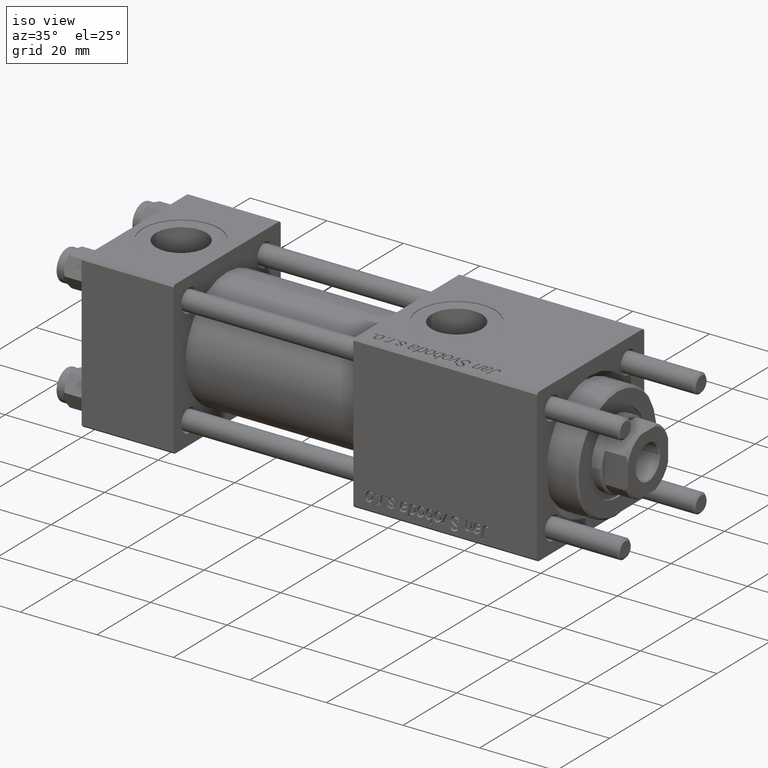
[diagram: clean part render]
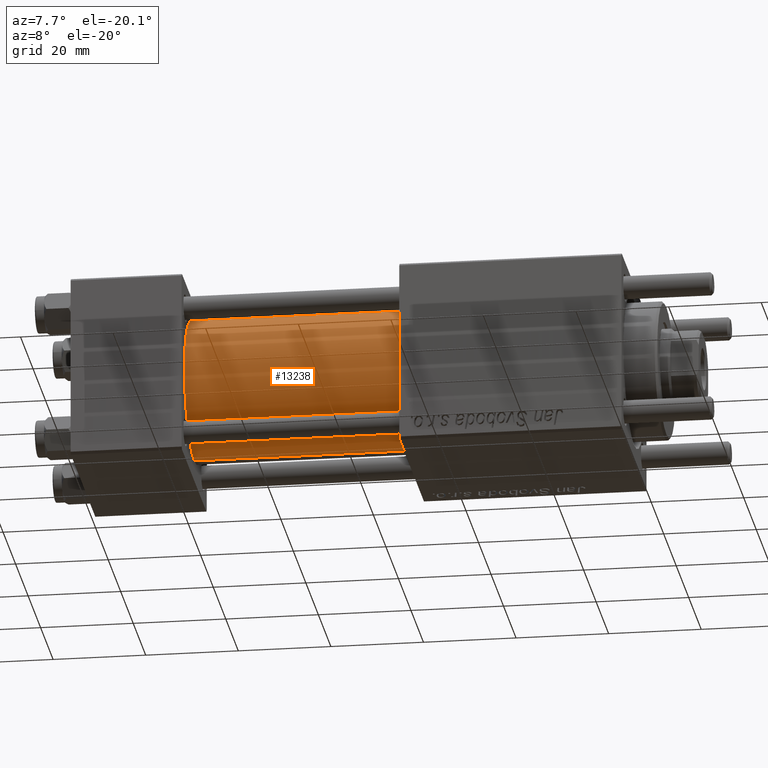
[diagram: tour spotlight — one face highlighted and labeled with its STEP entity id]
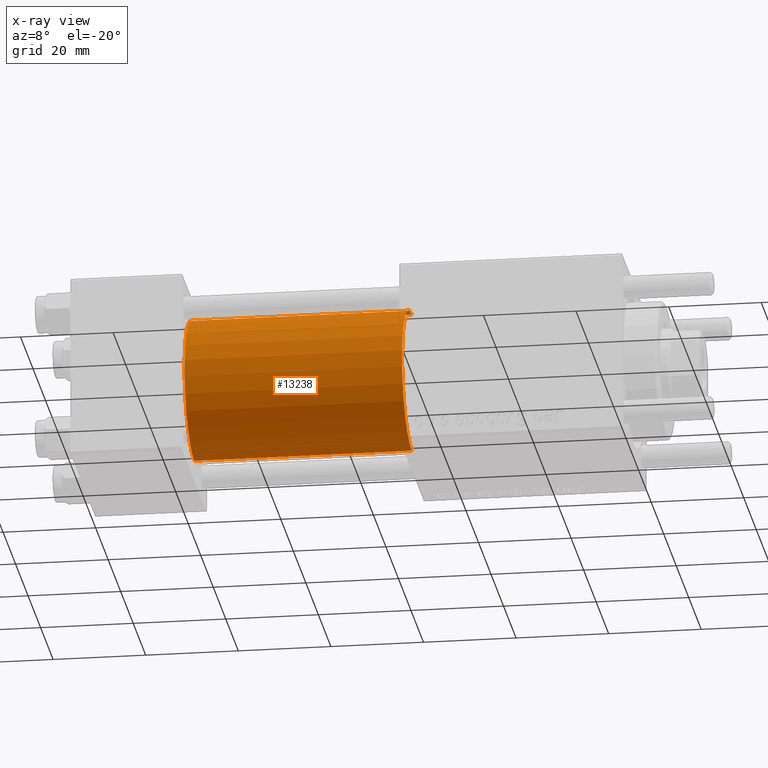
[diagram: x-ray of the same camera — body ghosted, this tour face saturated]
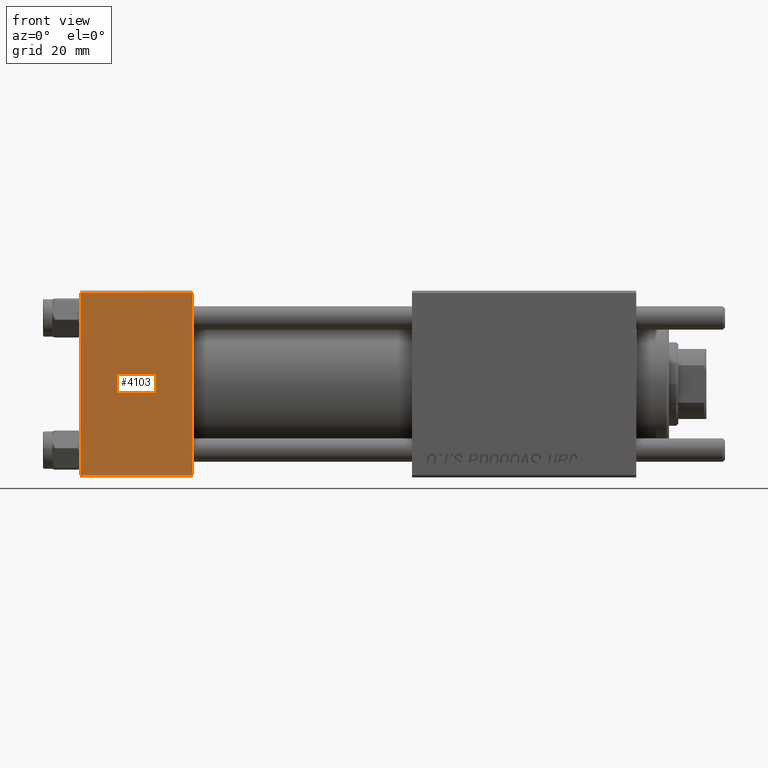
[diagram: tour spotlight — one face highlighted and labeled with its STEP entity id]
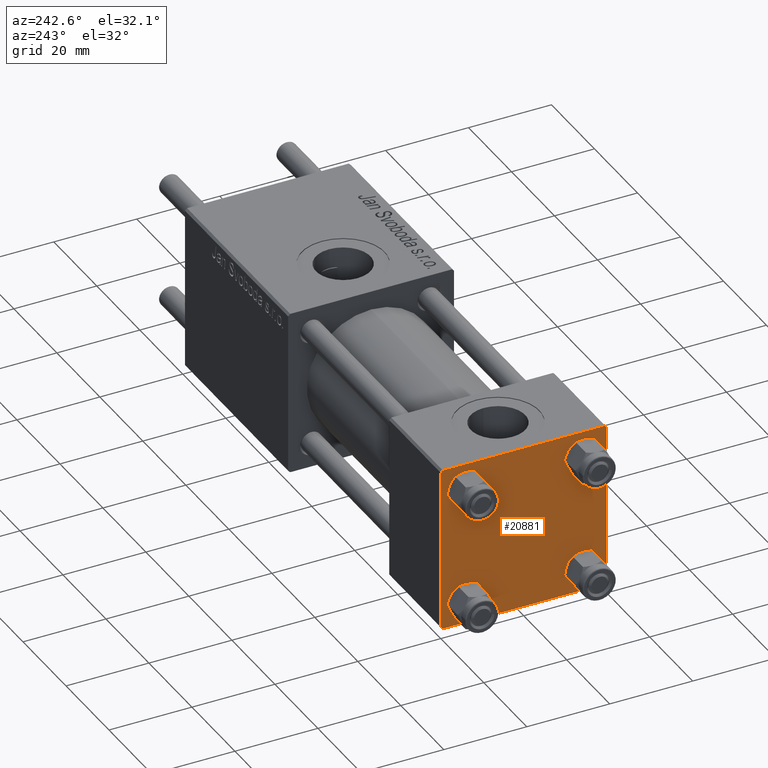
[diagram: tour spotlight — one face highlighted and labeled with its STEP entity id]
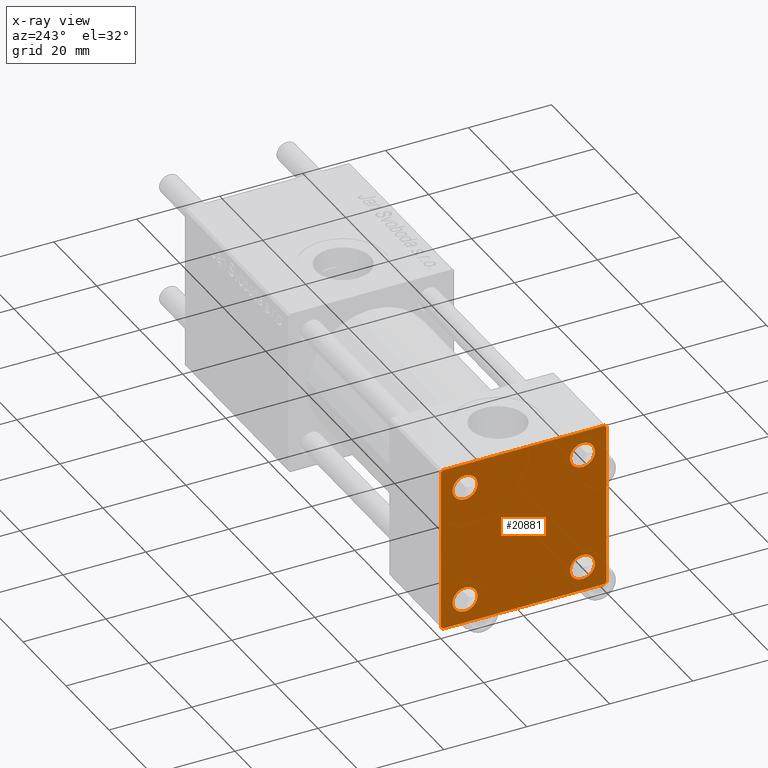
[diagram: x-ray of the same camera — body ghosted, this tour face saturated]
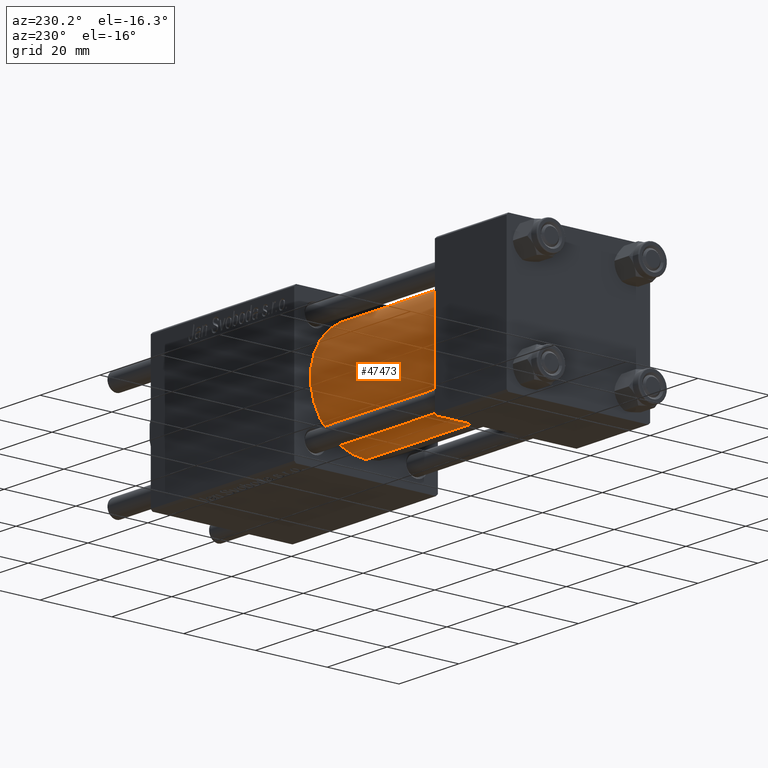
[diagram: tour spotlight — one face highlighted and labeled with its STEP entity id]
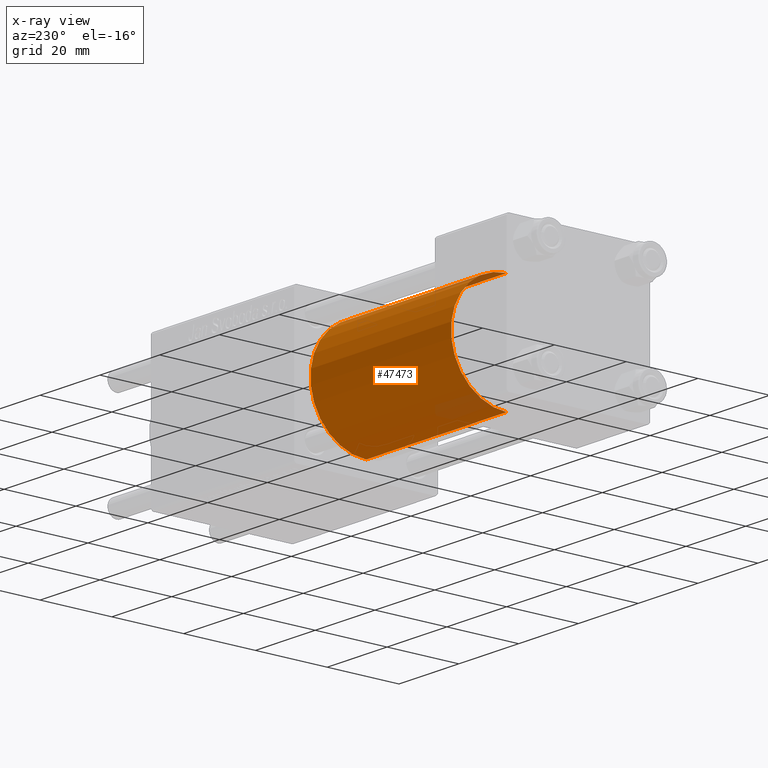
[diagram: x-ray of the same camera — body ghosted, this tour face saturated]
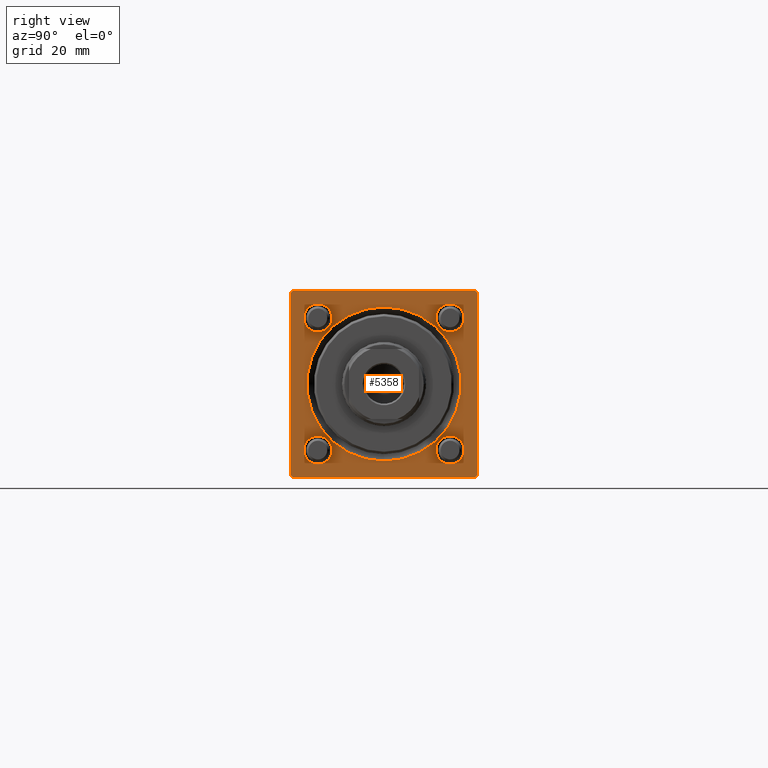
[diagram: tour spotlight — one face highlighted and labeled with its STEP entity id]
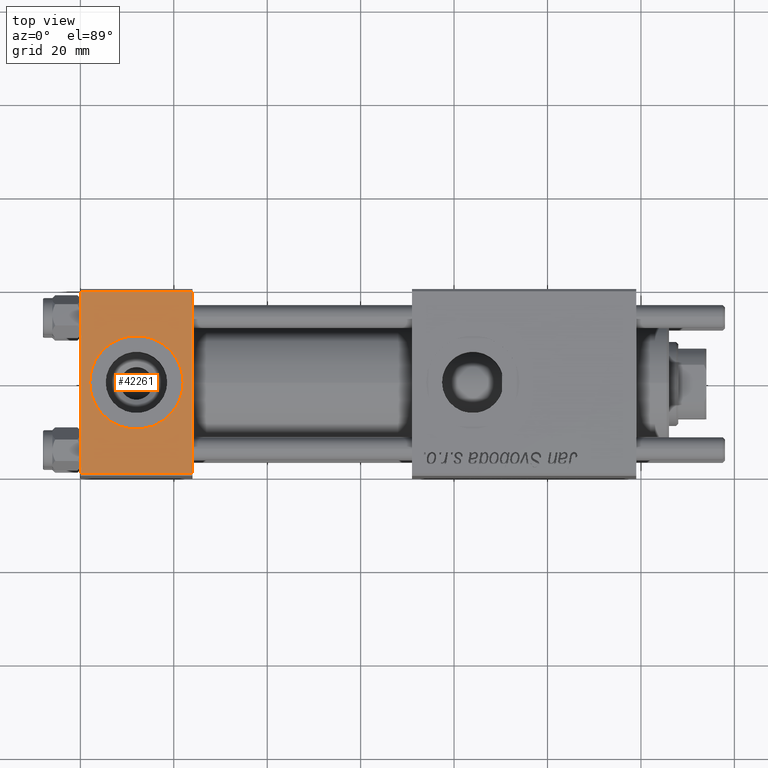
[diagram: tour spotlight — one face highlighted and labeled with its STEP entity id]
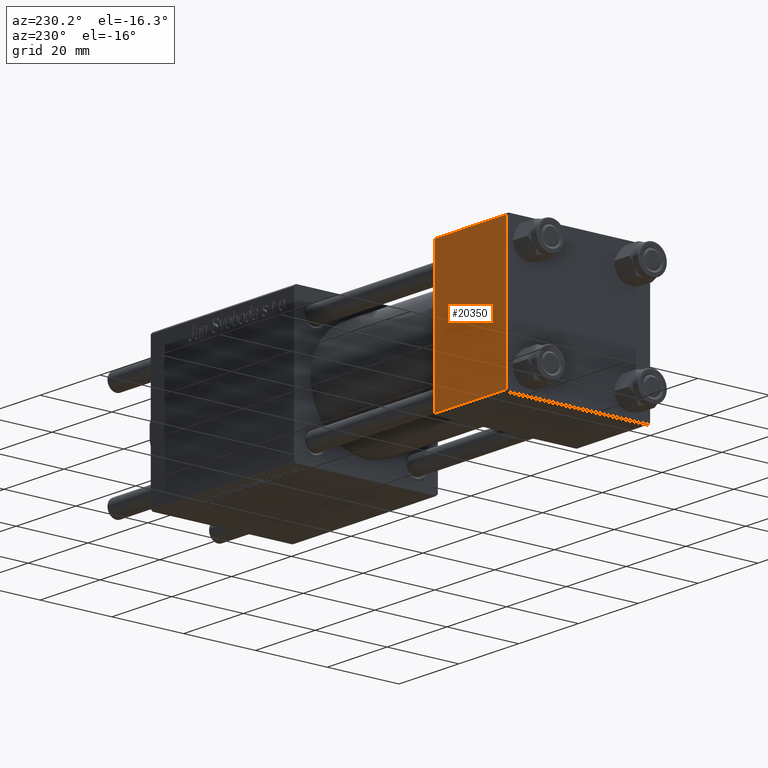
[diagram: tour spotlight — one face highlighted and labeled with its STEP entity id]
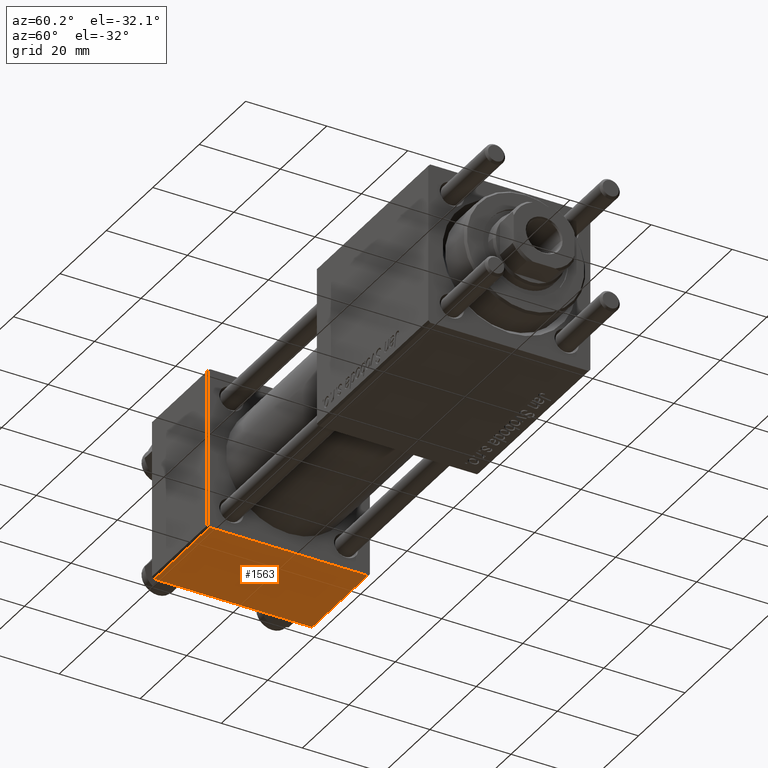
[diagram: tour spotlight — one face highlighted and labeled with its STEP entity id]
A machine part: a face-by-face anatomy tour. The part has 1152 B-rep faces; the first image is the clean iso view, then the 8 largest visible faces are spotlighted one at a time (largest first), each with its STEP entity span.

Face 1 — auxiliary view, entity #13238. An x-ray twin of the same camera follows (body ghosted, this face saturated) — the face is partly hidden behind the body. In plain terms, the highlighted cylindrical surface (partial cylindrical patch) has radius 15.5 mm, axis along (-1, -0, -0).
Definition (entity closure, byte-faithful):
#1494 = CARTESIAN_POINT ( 'NONE',  ( 24.00000000000000000, -2.602085213965210642E-15, 15.50000000000000000 ) ) ;
#1534 = VERTEX_POINT ( 'NONE', #2154 ) ;
#2118 = CARTESIAN_POINT ( 'NONE',  ( 71.00000000000001421, -7.038826752868131828E-16, -15.50000000000000000 ) ) ;
#2154 = CARTESIAN_POINT ( 'NONE',  ( 24.00000000000000000, -7.038826752868131828E-16, -15.50000000000000000 ) ) ;
#2237 = CIRCLE ( 'NONE', #30647, 15.50000000000000000 ) ;
#2763 = DIRECTION ( 'NONE',  ( 0.000000000000000000, 0.000000000000000000, -1.000000000000000000 ) ) ;
#4997 = VECTOR ( 'NONE', #11582, 1000.000000000000000 ) ;
#6837 = ORIENTED_EDGE ( 'NONE', *, *, #55506, .T. ) ;
#7010 = LINE ( 'NONE', #24492, #4997 ) ;
#7319 = VERTEX_POINT ( 'NONE', #1494 ) ;
#7344 = CARTESIAN_POINT ( 'NONE',  ( 71.00000000000001421, -2.602085213965210642E-15, 0.000000000000000000 ) ) ;
#8304 = ORIENTED_EDGE ( 'NONE', *, *, #25336, .F. ) ;
#11582 = DIRECTION ( 'NONE',  ( -1.000000000000000000, -0.000000000000000000, -0.000000000000000000 ) ) ;
#11857 = EDGE_CURVE ( 'NONE', #42491, #7319, #7010, .T. ) ;
#11965 = ORIENTED_EDGE ( 'NONE', *, *, #14362, .F. ) ;
#13238 = ADVANCED_FACE ( 'NONE', ( #14322 ), #22649, .T. ) ;
#14322 = FACE_OUTER_BOUND ( 'NONE', #53793, .T. ) ;
#14362 = EDGE_CURVE ( 'NONE', #42491, #34266, #2237, .T. ) ;
#18381 = VECTOR ( 'NONE', #46831, 1000.000000000000000 ) ;
#18749 = DIRECTION ( 'NONE',  ( 1.000000000000000000, 0.000000000000000000, 0.000000000000000000 ) ) ;
#20203 = LINE ( 'NONE', #29644, #18381 ) ;
#22649 = CYLINDRICAL_SURFACE ( 'NONE', #24161, 15.50000000000000000 ) ;
#24161 = AXIS2_PLACEMENT_3D ( 'NONE', #46042, #36376, #53594 ) ;
#24492 = CARTESIAN_POINT ( 'NONE',  ( 71.00000000000001421, -2.602085213965210642E-15, 15.50000000000000000 ) ) ;
#24825 = DIRECTION ( 'NONE',  ( 1.000000000000000000, 0.000000000000000000, 0.000000000000000000 ) ) ;
#25336 = EDGE_CURVE ( 'NONE', #34266, #1534, #20203, .T. ) ;
#25355 = AXIS2_PLACEMENT_3D ( 'NONE', #35936, #18749, #53433 ) ;
#27192 = CIRCLE ( 'NONE', #25355, 15.50000000000000000 ) ;
#29644 = CARTESIAN_POINT ( 'NONE',  ( 71.00000000000001421, -7.038826752868131828E-16, -15.50000000000000000 ) ) ;
#29892 = ORIENTED_EDGE ( 'NONE', *, *, #11857, .T. ) ;
#30647 = AXIS2_PLACEMENT_3D ( 'NONE', #7344, #24825, #2763 ) ;
#34266 = VERTEX_POINT ( 'NONE', #2118 ) ;
#35936 = CARTESIAN_POINT ( 'NONE',  ( 24.00000000000000000, -2.602085213965210642E-15, 0.000000000000000000 ) ) ;
#36376 = DIRECTION ( 'NONE',  ( -1.000000000000000000, -0.000000000000000000, -0.000000000000000000 ) ) ;
#39273 = CARTESIAN_POINT ( 'NONE',  ( 71.00000000000001421, -2.602085213965210642E-15, 15.50000000000000000 ) ) ;
#42491 = VERTEX_POINT ( 'NONE', #39273 ) ;
#46042 = CARTESIAN_POINT ( 'NONE',  ( 71.00000000000001421, -2.602085213965210642E-15, 0.000000000000000000 ) ) ;
#46831 = DIRECTION ( 'NONE',  ( -1.000000000000000000, -0.000000000000000000, -0.000000000000000000 ) ) ;
#53433 = DIRECTION ( 'NONE',  ( 0.000000000000000000, 0.000000000000000000, 1.000000000000000000 ) ) ;
#53594 = DIRECTION ( 'NONE',  ( 0.000000000000000000, 0.000000000000000000, 1.000000000000000000 ) ) ;
#53793 = EDGE_LOOP ( 'NONE', ( #8304, #11965, #29892, #6837 ) ) ;
#55506 = EDGE_CURVE ( 'NONE', #7319, #1534, #27192, .T. ) ;

Face 2 — front view, entity #4103. In plain terms, the highlighted planar face has unit normal (0, 1, 0).
Definition (entity closure, byte-faithful):
#682 = ORIENTED_EDGE ( 'NONE', *, *, #52597, .F. ) ;
#2865 = PLANE ( 'NONE',  #24092 ) ;
#4103 = ADVANCED_FACE ( 'NONE', ( #28381 ), #2865, .F. ) ;
#5781 = ORIENTED_EDGE ( 'NONE', *, *, #38135, .T. ) ;
#5948 = VERTEX_POINT ( 'NONE', #48398 ) ;
#5979 = DIRECTION ( 'NONE',  ( 0.000000000000000000, 8.673617379884036705E-17, -1.000000000000000000 ) ) ;
#6473 = CARTESIAN_POINT ( 'NONE',  ( 24.00000000000000000, -20.00000000000000000, -19.49999999999999645 ) ) ;
#9189 = VERTEX_POINT ( 'NONE', #27087 ) ;
#10552 = CARTESIAN_POINT ( 'NONE',  ( 24.00000000000000000, -20.00000000000000355, 19.99999999999998934 ) ) ;
#14802 = CARTESIAN_POINT ( 'NONE',  ( 0.000000000000000000, -20.00000000000000000, -19.49999999999999645 ) ) ;
#15421 = LINE ( 'NONE', #10552, #32743 ) ;
#15443 = LINE ( 'NONE', #41230, #29570 ) ;
#16779 = EDGE_LOOP ( 'NONE', ( #5781, #20387, #682, #23200 ) ) ;
#19668 = LINE ( 'NONE', #6473, #54890 ) ;
#20294 = LINE ( 'NONE', #42066, #35574 ) ;
#20387 = ORIENTED_EDGE ( 'NONE', *, *, #22879, .T. ) ;
#22879 = EDGE_CURVE ( 'NONE', #42767, #9189, #19668, .T. ) ;
#23200 = ORIENTED_EDGE ( 'NONE', *, *, #56207, .T. ) ;
#23958 = DIRECTION ( 'NONE',  ( 1.000000000000000000, 0.000000000000000000, 0.000000000000000000 ) ) ;
#24092 = AXIS2_PLACEMENT_3D ( 'NONE', #41570, #33253, #55051 ) ;
#27087 = CARTESIAN_POINT ( 'NONE',  ( 24.00000000000000000, -20.00000000000000000, -19.49999999999999645 ) ) ;
#28381 = FACE_OUTER_BOUND ( 'NONE', #16779, .T. ) ;
#29570 = VECTOR ( 'NONE', #50697, 1000.000000000000000 ) ;
#32210 = CARTESIAN_POINT ( 'NONE',  ( 24.00000000000000000, -20.00000000000000355, 19.49999999999998224 ) ) ;
#32743 = VECTOR ( 'NONE', #5979, 1000.000000000000000 ) ;
#33253 = DIRECTION ( 'NONE',  ( -0.000000000000000000, 1.000000000000000000, 8.673617379884036705E-17 ) ) ;
#35574 = VECTOR ( 'NONE', #38059, 1000.000000000000000 ) ;
#37530 = VERTEX_POINT ( 'NONE', #32210 ) ;
#38059 = DIRECTION ( 'NONE',  ( -1.000000000000000000, 0.000000000000000000, 0.000000000000000000 ) ) ;
#38135 = EDGE_CURVE ( 'NONE', #5948, #42767, #15443, .T. ) ;
#41230 = CARTESIAN_POINT ( 'NONE',  ( 0.000000000000000000, -20.00000000000000355, 19.99999999999998934 ) ) ;
#41570 = CARTESIAN_POINT ( 'NONE',  ( 24.00000000000000000, -20.00000000000000355, 19.99999999999998934 ) ) ;
#42066 = CARTESIAN_POINT ( 'NONE',  ( 24.00000000000000000, -20.00000000000000355, 19.49999999999998224 ) ) ;
#42767 = VERTEX_POINT ( 'NONE', #14802 ) ;
#48398 = CARTESIAN_POINT ( 'NONE',  ( 0.000000000000000000, -20.00000000000000355, 19.49999999999998224 ) ) ;
#50697 = DIRECTION ( 'NONE',  ( 0.000000000000000000, 8.673617379884036705E-17, -1.000000000000000000 ) ) ;
#52597 = EDGE_CURVE ( 'NONE', #37530, #9189, #15421, .T. ) ;
#54890 = VECTOR ( 'NONE', #23958, 1000.000000000000000 ) ;
#55051 = DIRECTION ( 'NONE',  ( 0.000000000000000000, -8.673617379884036705E-17, 1.000000000000000000 ) ) ;
#56207 = EDGE_CURVE ( 'NONE', #37530, #5948, #20294, .T. ) ;

Face 3 — auxiliary view, entity #20881. An x-ray twin of the same camera follows (body ghosted, this face saturated) — the face is partly hidden behind the body. In plain terms, the highlighted planar face has unit normal (-1, 0, 0).
Definition (entity closure, byte-faithful):
#318 = VECTOR ( 'NONE', #12173, 1000.000000000000000 ) ;
#960 = VECTOR ( 'NONE', #52352, 1000.000000000000114 ) ;
#1045 = LINE ( 'NONE', #1336, #11603 ) ;
#1336 = CARTESIAN_POINT ( 'NONE',  ( -0.000000000000000000, 19.75000000000013500, 19.74999999999986144 ) ) ;
#1428 = VERTEX_POINT ( 'NONE', #5335 ) ;
#1860 = EDGE_CURVE ( 'NONE', #9203, #21467, #7506, .T. ) ;
#2957 = CARTESIAN_POINT ( 'NONE',  ( 0.000000000000000000, -14.14999999999999503, -14.15000000000000391 ) ) ;
#3251 = CARTESIAN_POINT ( 'NONE',  ( -0.000000000000000000, 19.74999999999986855, -19.75000000000014211 ) ) ;
#3559 = CARTESIAN_POINT ( 'NONE',  ( 0.000000000000000000, 14.14999999999999858, -14.15000000000000036 ) ) ;
#3711 = DIRECTION ( 'NONE',  ( -1.000000000000000000, 0.000000000000000000, -0.000000000000000000 ) ) ;
#4000 = PLANE ( 'NONE',  #24648 ) ;
#4237 = DIRECTION ( 'NONE',  ( 0.000000000000000000, 0.000000000000000000, 1.000000000000000000 ) ) ;
#4683 = ORIENTED_EDGE ( 'NONE', *, *, #55298, .T. ) ;
#5097 = EDGE_CURVE ( 'NONE', #16589, #48233, #25927, .T. ) ;
#5335 = CARTESIAN_POINT ( 'NONE',  ( 0.000000000000000000, -19.49999999999999289, 19.99999999999998934 ) ) ;
#5569 = DIRECTION ( 'NONE',  ( 0.000000000000000000, 0.000000000000000000, 1.000000000000000000 ) ) ;
#5948 = VERTEX_POINT ( 'NONE', #48398 ) ;
#6708 = EDGE_CURVE ( 'NONE', #49370, #42767, #36343, .T. ) ;
#6979 = ORIENTED_EDGE ( 'NONE', *, *, #25006, .T. ) ;
#7091 = EDGE_CURVE ( 'NONE', #48233, #16589, #52540, .T. ) ;
#7506 = CIRCLE ( 'NONE', #52363, 2.999999999999983569 ) ;
#7992 = ORIENTED_EDGE ( 'NONE', *, *, #38766, .T. ) ;
#8009 = CARTESIAN_POINT ( 'NONE',  ( 0.000000000000000000, 0.000000000000000000, 0.000000000000000000 ) ) ;
#8290 = DIRECTION ( 'NONE',  ( -0.000000000000000000, 0.000000000000000000, 1.000000000000000000 ) ) ;
#9145 = AXIS2_PLACEMENT_3D ( 'NONE', #13020, #39110, #42832 ) ;
#9203 = VERTEX_POINT ( 'NONE', #45707 ) ;
#10674 = EDGE_LOOP ( 'NONE', ( #23186, #20020 ) ) ;
#10718 = VERTEX_POINT ( 'NONE', #56590 ) ;
#10907 = CARTESIAN_POINT ( 'NONE',  ( 0.000000000000000000, 14.14999999999999858, 14.15000000000000036 ) ) ;
#11603 = VECTOR ( 'NONE', #18819, 999.9999999999998863 ) ;
#12173 = DIRECTION ( 'NONE',  ( 0.000000000000000000, -1.000000000000000000, -2.602085213965210149E-16 ) ) ;
#12575 = DIRECTION ( 'NONE',  ( 1.000000000000000000, 0.000000000000000000, 0.000000000000000000 ) ) ;
#13020 = CARTESIAN_POINT ( 'NONE',  ( 0.000000000000000000, -14.14999999999999503, 14.15000000000000391 ) ) ;
#13039 = CARTESIAN_POINT ( 'NONE',  ( 0.000000000000000000, 20.00000000000000000, 20.00000000000000000 ) ) ;
#13081 = CARTESIAN_POINT ( 'NONE',  ( -0.000000000000000000, -19.74999999999992539, 19.75000000000006395 ) ) ;
#13161 = CARTESIAN_POINT ( 'NONE',  ( 0.000000000000000000, -14.14999999999999503, 17.14999999999998792 ) ) ;
#13944 = ORIENTED_EDGE ( 'NONE', *, *, #14177, .T. ) ;
#14177 = EDGE_CURVE ( 'NONE', #55614, #43328, #20885, .T. ) ;
#14562 = CARTESIAN_POINT ( 'NONE',  ( 0.000000000000000000, -19.75000000000020961, -19.74999999999979394 ) ) ;
#14619 = CIRCLE ( 'NONE', #9145, 2.999999999999983569 ) ;
#14755 = EDGE_LOOP ( 'NONE', ( #7992, #32685 ) ) ;
#14802 = CARTESIAN_POINT ( 'NONE',  ( 0.000000000000000000, -20.00000000000000000, -19.49999999999999645 ) ) ;
#15000 = AXIS2_PLACEMENT_3D ( 'NONE', #2957, #30189, #56285 ) ;
#15319 = ORIENTED_EDGE ( 'NONE', *, *, #16648, .T. ) ;
#15405 = VERTEX_POINT ( 'NONE', #21142 ) ;
#15443 = LINE ( 'NONE', #41230, #29570 ) ;
#15616 = DIRECTION ( 'NONE',  ( 1.000000000000000000, 0.000000000000000000, 0.000000000000000000 ) ) ;
#15896 = CARTESIAN_POINT ( 'NONE',  ( 0.000000000000000000, 14.14999999999999858, -14.15000000000000036 ) ) ;
#16589 = VERTEX_POINT ( 'NONE', #38855 ) ;
#16648 = EDGE_CURVE ( 'NONE', #39658, #49370, #49714, .T. ) ;
#16735 = DIRECTION ( 'NONE',  ( 1.000000000000000000, 0.000000000000000000, 0.000000000000000000 ) ) ;
#17689 = AXIS2_PLACEMENT_3D ( 'NONE', #53713, #48288, #5569 ) ;
#17743 = FACE_BOUND ( 'NONE', #10674, .T. ) ;
#18265 = AXIS2_PLACEMENT_3D ( 'NONE', #10907, #56111, #4237 ) ;
#18819 = DIRECTION ( 'NONE',  ( 0.000000000000000000, 0.7071067811865425767, -0.7071067811865525687 ) ) ;
#20020 = ORIENTED_EDGE ( 'NONE', *, *, #7091, .T. ) ;
#20120 = EDGE_LOOP ( 'NONE', ( #39763, #56325 ) ) ;
#20881 = ADVANCED_FACE ( 'NONE', ( #29786, #17743, #35220, #47267, #43255 ), #4000, .T. ) ;
#20885 = LINE ( 'NONE', #56152, #41584 ) ;
#21142 = CARTESIAN_POINT ( 'NONE',  ( 0.000000000000000000, -14.14999999999999503, 11.15000000000002345 ) ) ;
#21328 = EDGE_CURVE ( 'NONE', #21467, #9203, #21924, .T. ) ;
#21467 = VERTEX_POINT ( 'NONE', #51724 ) ;
#21924 = CIRCLE ( 'NONE', #56709, 2.999999999999983569 ) ;
#22234 = EDGE_CURVE ( 'NONE', #15405, #45541, #14619, .T. ) ;
#22639 = EDGE_CURVE ( 'NONE', #55717, #10718, #25582, .T. ) ;
#22835 = CARTESIAN_POINT ( 'NONE',  ( 0.000000000000000000, -19.50000000000000711, -20.00000000000000000 ) ) ;
#23186 = ORIENTED_EDGE ( 'NONE', *, *, #5097, .T. ) ;
#23637 = DIRECTION ( 'NONE',  ( 0.000000000000000000, -1.000000000000000000, 1.734723475976807094E-16 ) ) ;
#23651 = EDGE_LOOP ( 'NONE', ( #48373, #31076 ) ) ;
#23828 = CARTESIAN_POINT ( 'NONE',  ( 0.000000000000000000, 14.14999999999999858, 14.15000000000000036 ) ) ;
#24648 = AXIS2_PLACEMENT_3D ( 'NONE', #8009, #3711, #8290 ) ;
#24952 = CARTESIAN_POINT ( 'NONE',  ( 0.000000000000000000, -14.14999999999999503, -17.15000000000000924 ) ) ;
#25006 = EDGE_CURVE ( 'NONE', #5948, #1428, #48700, .T. ) ;
#25582 = CIRCLE ( 'NONE', #18265, 2.999999999999983569 ) ;
#25756 = CARTESIAN_POINT ( 'NONE',  ( 0.000000000000000000, -14.14999999999999503, -14.15000000000000391 ) ) ;
#25927 = CIRCLE ( 'NONE', #29600, 3.000000000000004441 ) ;
#27486 = EDGE_CURVE ( 'NONE', #10718, #55717, #36695, .T. ) ;
#27541 = DIRECTION ( 'NONE',  ( 0.000000000000000000, 0.000000000000000000, 1.000000000000000000 ) ) ;
#27728 = DIRECTION ( 'NONE',  ( 0.000000000000000000, -0.7071067811865401342, 0.7071067811865549002 ) ) ;
#28210 = CARTESIAN_POINT ( 'NONE',  ( 0.000000000000000000, 20.00000000000000000, -20.00000000000000711 ) ) ;
#29570 = VECTOR ( 'NONE', #50697, 1000.000000000000000 ) ;
#29600 = AXIS2_PLACEMENT_3D ( 'NONE', #25756, #12575, #38087 ) ;
#29786 = FACE_BOUND ( 'NONE', #14755, .T. ) ;
#30189 = DIRECTION ( 'NONE',  ( 1.000000000000000000, 0.000000000000000000, 0.000000000000000000 ) ) ;
#31076 = ORIENTED_EDGE ( 'NONE', *, *, #27486, .T. ) ;
#32685 = ORIENTED_EDGE ( 'NONE', *, *, #22234, .T. ) ;
#33456 = VERTEX_POINT ( 'NONE', #53282 ) ;
#33900 = DIRECTION ( 'NONE',  ( -0.000000000000000000, -0.7071067811865524577, -0.7071067811865426878 ) ) ;
#33987 = EDGE_CURVE ( 'NONE', #33456, #1428, #56346, .T. ) ;
#34056 = DIRECTION ( 'NONE',  ( 0.000000000000000000, 0.000000000000000000, -1.000000000000000000 ) ) ;
#35220 = FACE_BOUND ( 'NONE', #20120, .T. ) ;
#35676 = ORIENTED_EDGE ( 'NONE', *, *, #33987, .F. ) ;
#36115 = ORIENTED_EDGE ( 'NONE', *, *, #38135, .F. ) ;
#36343 = LINE ( 'NONE', #14562, #53422 ) ;
#36695 = CIRCLE ( 'NONE', #55952, 2.999999999999983569 ) ;
#37405 = VECTOR ( 'NONE', #33900, 1000.000000000000000 ) ;
#38087 = DIRECTION ( 'NONE',  ( 0.000000000000000000, 0.000000000000000000, 1.000000000000000000 ) ) ;
#38135 = EDGE_CURVE ( 'NONE', #5948, #42767, #15443, .T. ) ;
#38202 = CARTESIAN_POINT ( 'NONE',  ( 0.000000000000000000, 19.50000000000000711, -20.00000000000000711 ) ) ;
#38766 = EDGE_CURVE ( 'NONE', #45541, #15405, #42382, .T. ) ;
#38855 = CARTESIAN_POINT ( 'NONE',  ( 0.000000000000000000, -14.14999999999999503, -11.15000000000000036 ) ) ;
#39110 = DIRECTION ( 'NONE',  ( 1.000000000000000000, 0.000000000000000000, 0.000000000000000000 ) ) ;
#39658 = VERTEX_POINT ( 'NONE', #38202 ) ;
#39763 = ORIENTED_EDGE ( 'NONE', *, *, #21328, .T. ) ;
#39905 = CARTESIAN_POINT ( 'NONE',  ( 0.000000000000000000, 14.14999999999999858, 17.14999999999998437 ) ) ;
#40746 = DIRECTION ( 'NONE',  ( 1.000000000000000000, 0.000000000000000000, 0.000000000000000000 ) ) ;
#41230 = CARTESIAN_POINT ( 'NONE',  ( 0.000000000000000000, -20.00000000000000355, 19.99999999999998934 ) ) ;
#41584 = VECTOR ( 'NONE', #34056, 1000.000000000000000 ) ;
#42382 = CIRCLE ( 'NONE', #17689, 2.999999999999983569 ) ;
#42486 = CARTESIAN_POINT ( 'NONE',  ( 0.000000000000000000, 20.00000000000000000, 19.49999999999999289 ) ) ;
#42501 = LINE ( 'NONE', #3251, #37405 ) ;
#42767 = VERTEX_POINT ( 'NONE', #14802 ) ;
#42832 = DIRECTION ( 'NONE',  ( 0.000000000000000000, 0.000000000000000000, 1.000000000000000000 ) ) ;
#42952 = ORIENTED_EDGE ( 'NONE', *, *, #6708, .T. ) ;
#43255 = FACE_OUTER_BOUND ( 'NONE', #50226, .T. ) ;
#43328 = VERTEX_POINT ( 'NONE', #49084 ) ;
#45541 = VERTEX_POINT ( 'NONE', #13161 ) ;
#45707 = CARTESIAN_POINT ( 'NONE',  ( 0.000000000000000000, 14.14999999999999858, -17.14999999999998437 ) ) ;
#46284 = DIRECTION ( 'NONE',  ( 0.000000000000000000, 0.000000000000000000, 1.000000000000000000 ) ) ;
#47267 = FACE_BOUND ( 'NONE', #23651, .T. ) ;
#47532 = ORIENTED_EDGE ( 'NONE', *, *, #56454, .T. ) ;
#48233 = VERTEX_POINT ( 'NONE', #24952 ) ;
#48288 = DIRECTION ( 'NONE',  ( 1.000000000000000000, 0.000000000000000000, 0.000000000000000000 ) ) ;
#48373 = ORIENTED_EDGE ( 'NONE', *, *, #22639, .T. ) ;
#48398 = CARTESIAN_POINT ( 'NONE',  ( 0.000000000000000000, -20.00000000000000355, 19.49999999999998224 ) ) ;
#48700 = LINE ( 'NONE', #13081, #960 ) ;
#49084 = CARTESIAN_POINT ( 'NONE',  ( 0.000000000000000000, 20.00000000000000000, -19.50000000000002132 ) ) ;
#49370 = VERTEX_POINT ( 'NONE', #22835 ) ;
#49714 = LINE ( 'NONE', #28210, #51788 ) ;
#50226 = EDGE_LOOP ( 'NONE', ( #13944, #47532, #15319, #42952, #36115, #6979, #35676, #4683 ) ) ;
#50697 = DIRECTION ( 'NONE',  ( 0.000000000000000000, 8.673617379884036705E-17, -1.000000000000000000 ) ) ;
#51714 = DIRECTION ( 'NONE',  ( 0.000000000000000000, 0.000000000000000000, 1.000000000000000000 ) ) ;
#51724 = CARTESIAN_POINT ( 'NONE',  ( 0.000000000000000000, 14.14999999999999858, -11.15000000000001812 ) ) ;
#51788 = VECTOR ( 'NONE', #23637, 1000.000000000000000 ) ;
#52352 = DIRECTION ( 'NONE',  ( -0.000000000000000000, 0.7071067811865500152, 0.7071067811865451302 ) ) ;
#52363 = AXIS2_PLACEMENT_3D ( 'NONE', #3559, #16735, #51714 ) ;
#52540 = CIRCLE ( 'NONE', #15000, 3.000000000000004441 ) ;
#53282 = CARTESIAN_POINT ( 'NONE',  ( 0.000000000000000000, 19.50000000000000000, 20.00000000000000000 ) ) ;
#53422 = VECTOR ( 'NONE', #27728, 1000.000000000000000 ) ;
#53713 = CARTESIAN_POINT ( 'NONE',  ( 0.000000000000000000, -14.14999999999999503, 14.15000000000000391 ) ) ;
#55298 = EDGE_CURVE ( 'NONE', #33456, #55614, #1045, .T. ) ;
#55614 = VERTEX_POINT ( 'NONE', #42486 ) ;
#55717 = VERTEX_POINT ( 'NONE', #39905 ) ;
#55952 = AXIS2_PLACEMENT_3D ( 'NONE', #23828, #40746, #27541 ) ;
#56111 = DIRECTION ( 'NONE',  ( 1.000000000000000000, 0.000000000000000000, 0.000000000000000000 ) ) ;
#56152 = CARTESIAN_POINT ( 'NONE',  ( 0.000000000000000000, 20.00000000000000000, 20.00000000000000000 ) ) ;
#56285 = DIRECTION ( 'NONE',  ( 0.000000000000000000, 0.000000000000000000, 1.000000000000000000 ) ) ;
#56325 = ORIENTED_EDGE ( 'NONE', *, *, #1860, .T. ) ;
#56346 = LINE ( 'NONE', #13039, #318 ) ;
#56454 = EDGE_CURVE ( 'NONE', #43328, #39658, #42501, .T. ) ;
#56590 = CARTESIAN_POINT ( 'NONE',  ( 0.000000000000000000, 14.14999999999999858, 11.15000000000001990 ) ) ;
#56709 = AXIS2_PLACEMENT_3D ( 'NONE', #15896, #15616, #46284 ) ;

Face 4 — auxiliary view, entity #47473. An x-ray twin of the same camera follows (body ghosted, this face saturated) — the face is partly hidden behind the body. In plain terms, the highlighted cylindrical surface (partial cylindrical patch) has radius 15.5 mm, axis along (-1, -0, -0).
Definition (entity closure, byte-faithful):
#1494 = CARTESIAN_POINT ( 'NONE',  ( 24.00000000000000000, -2.602085213965210642E-15, 15.50000000000000000 ) ) ;
#1534 = VERTEX_POINT ( 'NONE', #2154 ) ;
#2118 = CARTESIAN_POINT ( 'NONE',  ( 71.00000000000001421, -7.038826752868131828E-16, -15.50000000000000000 ) ) ;
#2154 = CARTESIAN_POINT ( 'NONE',  ( 24.00000000000000000, -7.038826752868131828E-16, -15.50000000000000000 ) ) ;
#3943 = AXIS2_PLACEMENT_3D ( 'NONE', #52366, #9360, #13093 ) ;
#4997 = VECTOR ( 'NONE', #11582, 1000.000000000000000 ) ;
#7010 = LINE ( 'NONE', #24492, #4997 ) ;
#7319 = VERTEX_POINT ( 'NONE', #1494 ) ;
#8043 = CARTESIAN_POINT ( 'NONE',  ( 24.00000000000000000, -2.602085213965210642E-15, 0.000000000000000000 ) ) ;
#9360 = DIRECTION ( 'NONE',  ( 1.000000000000000000, 0.000000000000000000, 0.000000000000000000 ) ) ;
#11582 = DIRECTION ( 'NONE',  ( -1.000000000000000000, -0.000000000000000000, -0.000000000000000000 ) ) ;
#11857 = EDGE_CURVE ( 'NONE', #42491, #7319, #7010, .T. ) ;
#13093 = DIRECTION ( 'NONE',  ( 0.000000000000000000, 0.000000000000000000, -1.000000000000000000 ) ) ;
#14317 = ORIENTED_EDGE ( 'NONE', *, *, #36460, .F. ) ;
#17214 = DIRECTION ( 'NONE',  ( 0.000000000000000000, 0.000000000000000000, 1.000000000000000000 ) ) ;
#18381 = VECTOR ( 'NONE', #46831, 1000.000000000000000 ) ;
#20203 = LINE ( 'NONE', #29644, #18381 ) ;
#21223 = DIRECTION ( 'NONE',  ( 1.000000000000000000, 0.000000000000000000, 0.000000000000000000 ) ) ;
#21437 = CARTESIAN_POINT ( 'NONE',  ( 71.00000000000001421, -2.602085213965210642E-15, 0.000000000000000000 ) ) ;
#22288 = CYLINDRICAL_SURFACE ( 'NONE', #56406, 15.50000000000000000 ) ;
#24492 = CARTESIAN_POINT ( 'NONE',  ( 71.00000000000001421, -2.602085213965210642E-15, 15.50000000000000000 ) ) ;
#25336 = EDGE_CURVE ( 'NONE', #34266, #1534, #20203, .T. ) ;
#26283 = ORIENTED_EDGE ( 'NONE', *, *, #25336, .T. ) ;
#28636 = CIRCLE ( 'NONE', #3943, 15.50000000000000000 ) ;
#29644 = CARTESIAN_POINT ( 'NONE',  ( 71.00000000000001421, -7.038826752868131828E-16, -15.50000000000000000 ) ) ;
#30029 = DIRECTION ( 'NONE',  ( -1.000000000000000000, -0.000000000000000000, -0.000000000000000000 ) ) ;
#34266 = VERTEX_POINT ( 'NONE', #2118 ) ;
#35716 = ORIENTED_EDGE ( 'NONE', *, *, #37993, .T. ) ;
#36001 = AXIS2_PLACEMENT_3D ( 'NONE', #8043, #21223, #17214 ) ;
#36460 = EDGE_CURVE ( 'NONE', #34266, #42491, #28636, .T. ) ;
#37670 = ORIENTED_EDGE ( 'NONE', *, *, #11857, .F. ) ;
#37993 = EDGE_CURVE ( 'NONE', #1534, #7319, #40557, .T. ) ;
#38613 = DIRECTION ( 'NONE',  ( 0.000000000000000000, 0.000000000000000000, 1.000000000000000000 ) ) ;
#39273 = CARTESIAN_POINT ( 'NONE',  ( 71.00000000000001421, -2.602085213965210642E-15, 15.50000000000000000 ) ) ;
#40557 = CIRCLE ( 'NONE', #36001, 15.50000000000000000 ) ;
#42491 = VERTEX_POINT ( 'NONE', #39273 ) ;
#44349 = FACE_OUTER_BOUND ( 'NONE', #53540, .T. ) ;
#46831 = DIRECTION ( 'NONE',  ( -1.000000000000000000, -0.000000000000000000, -0.000000000000000000 ) ) ;
#47473 = ADVANCED_FACE ( 'NONE', ( #44349 ), #22288, .T. ) ;
#52366 = CARTESIAN_POINT ( 'NONE',  ( 71.00000000000001421, -2.602085213965210642E-15, 0.000000000000000000 ) ) ;
#53540 = EDGE_LOOP ( 'NONE', ( #14317, #26283, #35716, #37670 ) ) ;
#56406 = AXIS2_PLACEMENT_3D ( 'NONE', #21437, #30029, #38613 ) ;

Face 5 — right view, entity #5358. In plain terms, the highlighted planar face has unit normal (-1, 0, 0).
Definition (entity closure, byte-faithful):
#268 = AXIS2_PLACEMENT_3D ( 'NONE', #20276, #38312, #42327 ) ;
#1655 = FACE_OUTER_BOUND ( 'NONE', #21620, .T. ) ;
#1978 = EDGE_LOOP ( 'NONE', ( #3816, #41681 ) ) ;
#2268 = LINE ( 'NONE', #27208, #36972 ) ;
#2601 = VERTEX_POINT ( 'NONE', #42245 ) ;
#3058 = CARTESIAN_POINT ( 'NONE',  ( 119.0000000000000142, -14.15000000000000036, -14.15000000000000036 ) ) ;
#3070 = CIRCLE ( 'NONE', #10265, 3.000000000000004441 ) ;
#3188 = LINE ( 'NONE', #17226, #32248 ) ;
#3409 = ORIENTED_EDGE ( 'NONE', *, *, #40366, .T. ) ;
#3616 = CARTESIAN_POINT ( 'NONE',  ( 119.0000000000000142, 19.99999999999999645, 19.49999999999998579 ) ) ;
#3816 = ORIENTED_EDGE ( 'NONE', *, *, #24701, .T. ) ;
#4273 = EDGE_CURVE ( 'NONE', #43257, #5113, #19510, .T. ) ;
#4870 = ORIENTED_EDGE ( 'NONE', *, *, #35861, .T. ) ;
#5113 = VERTEX_POINT ( 'NONE', #55592 ) ;
#5358 = ADVANCED_FACE ( 'NONE', ( #28563, #10530, #54390, #53820, #49504, #1655 ), #27712, .F. ) ;
#5447 = DIRECTION ( 'NONE',  ( 0.000000000000000000, 8.673617379884036705E-17, -1.000000000000000000 ) ) ;
#5887 = AXIS2_PLACEMENT_3D ( 'NONE', #19349, #45710, #45989 ) ;
#6082 = DIRECTION ( 'NONE',  ( 0.000000000000000000, 0.7071067811865376918, -0.7071067811865574537 ) ) ;
#6334 = ORIENTED_EDGE ( 'NONE', *, *, #32051, .T. ) ;
#7541 = EDGE_CURVE ( 'NONE', #2601, #34865, #2268, .T. ) ;
#7729 = CARTESIAN_POINT ( 'NONE',  ( 119.0000000000000142, 14.15000000000000036, 17.15000000000000568 ) ) ;
#8750 = DIRECTION ( 'NONE',  ( 0.000000000000000000, -0.7071067811865574537, 0.7071067811865376918 ) ) ;
#8856 = ORIENTED_EDGE ( 'NONE', *, *, #16516, .F. ) ;
#10115 = EDGE_CURVE ( 'NONE', #34865, #20756, #37303, .T. ) ;
#10172 = DIRECTION ( 'NONE',  ( 0.000000000000000000, 0.000000000000000000, 1.000000000000000000 ) ) ;
#10265 = AXIS2_PLACEMENT_3D ( 'NONE', #34805, #30803, #52018 ) ;
#10530 = FACE_BOUND ( 'NONE', #15889, .T. ) ;
#11724 = LINE ( 'NONE', #25189, #47129 ) ;
#11796 = EDGE_CURVE ( 'NONE', #16509, #28278, #15932, .T. ) ;
#13076 = DIRECTION ( 'NONE',  ( 0.000000000000000000, 0.000000000000000000, 1.000000000000000000 ) ) ;
#13404 = VERTEX_POINT ( 'NONE', #30265 ) ;
#14014 = DIRECTION ( 'NONE',  ( -1.000000000000000000, -0.000000000000000000, -0.000000000000000000 ) ) ;
#14085 = DIRECTION ( 'NONE',  ( -1.000000000000000000, -0.000000000000000000, -0.000000000000000000 ) ) ;
#14517 = VERTEX_POINT ( 'NONE', #3616 ) ;
#14686 = VERTEX_POINT ( 'NONE', #53400 ) ;
#14897 = CIRCLE ( 'NONE', #268, 3.000000000000000888 ) ;
#14937 = CARTESIAN_POINT ( 'NONE',  ( 119.0000000000000142, -14.15000000000000036, 14.15000000000000036 ) ) ;
#15195 = ORIENTED_EDGE ( 'NONE', *, *, #35369, .F. ) ;
#15348 = VECTOR ( 'NONE', #50321, 1000.000000000000114 ) ;
#15357 = CARTESIAN_POINT ( 'NONE',  ( 119.0000000000000142, 19.99999999999999645, -19.50000000000000000 ) ) ;
#15521 = CARTESIAN_POINT ( 'NONE',  ( 119.0000000000000142, -19.50000000000002487, -20.00000000000000000 ) ) ;
#15889 = EDGE_LOOP ( 'NONE', ( #4870, #20603 ) ) ;
#15932 = CIRCLE ( 'NONE', #5887, 16.50000000000001421 ) ;
#16509 = VERTEX_POINT ( 'NONE', #19969 ) ;
#16516 = EDGE_CURVE ( 'NONE', #48441, #20756, #25097, .T. ) ;
#17194 = ORIENTED_EDGE ( 'NONE', *, *, #33217, .T. ) ;
#17226 = CARTESIAN_POINT ( 'NONE',  ( 119.0000000000000142, 19.99999999999999645, 20.00000000000000000 ) ) ;
#18804 = VECTOR ( 'NONE', #54935, 1000.000000000000000 ) ;
#19245 = CIRCLE ( 'NONE', #24721, 2.999999999999973355 ) ;
#19349 = CARTESIAN_POINT ( 'NONE',  ( 119.0000000000000142, 0.000000000000000000, 0.000000000000000000 ) ) ;
#19402 = ORIENTED_EDGE ( 'NONE', *, *, #11796, .T. ) ;
#19510 = CIRCLE ( 'NONE', #52453, 3.000000000000004441 ) ;
#19969 = CARTESIAN_POINT ( 'NONE',  ( 119.0000000000000142, 2.020667218593134678E-15, 16.50000000000001421 ) ) ;
#20276 = CARTESIAN_POINT ( 'NONE',  ( 119.0000000000000142, 14.15000000000000036, 14.15000000000000036 ) ) ;
#20292 = VERTEX_POINT ( 'NONE', #52882 ) ;
#20603 = ORIENTED_EDGE ( 'NONE', *, *, #54903, .T. ) ;
#20670 = DIRECTION ( 'NONE',  ( 0.000000000000000000, 0.000000000000000000, -1.000000000000000000 ) ) ;
#20756 = VERTEX_POINT ( 'NONE', #51285 ) ;
#21001 = ORIENTED_EDGE ( 'NONE', *, *, #7541, .T. ) ;
#21238 = CARTESIAN_POINT ( 'NONE',  ( 119.0000000000000142, 0.000000000000000000, 0.000000000000000000 ) ) ;
#21384 = DIRECTION ( 'NONE',  ( 0.000000000000000000, -1.000000000000000000, -8.673617379884035472E-17 ) ) ;
#21620 = EDGE_LOOP ( 'NONE', ( #21001, #36040, #8856, #47268, #15195, #50134, #3409, #34202 ) ) ;
#21672 = EDGE_LOOP ( 'NONE', ( #6334, #36230 ) ) ;
#22008 = EDGE_LOOP ( 'NONE', ( #17194, #19402 ) ) ;
#22075 = EDGE_CURVE ( 'NONE', #14686, #27475, #39336, .T. ) ;
#22380 = CARTESIAN_POINT ( 'NONE',  ( 119.0000000000000142, -14.15000000000000036, -17.15000000000000568 ) ) ;
#22483 = AXIS2_PLACEMENT_3D ( 'NONE', #3058, #38295, #13076 ) ;
#22834 = CARTESIAN_POINT ( 'NONE',  ( 119.0000000000000142, -19.50000000000001776, 19.99999999999999645 ) ) ;
#22893 = DIRECTION ( 'NONE',  ( 0.000000000000000000, 0.000000000000000000, 1.000000000000000000 ) ) ;
#23036 = CARTESIAN_POINT ( 'NONE',  ( 119.0000000000000142, 19.49999999999996803, 20.00000000000000000 ) ) ;
#24701 = EDGE_CURVE ( 'NONE', #27475, #14686, #19245, .T. ) ;
#24721 = AXIS2_PLACEMENT_3D ( 'NONE', #14937, #44489, #40171 ) ;
#25097 = LINE ( 'NONE', #37437, #18804 ) ;
#25189 = CARTESIAN_POINT ( 'NONE',  ( 119.0000000000000142, -20.00000000000000355, 19.50000000000002487 ) ) ;
#26848 = EDGE_LOOP ( 'NONE', ( #39199, #29586 ) ) ;
#27172 = EDGE_CURVE ( 'NONE', #14517, #30923, #44826, .T. ) ;
#27208 = CARTESIAN_POINT ( 'NONE',  ( 119.0000000000000142, -20.00000000000000355, 19.99999999999999645 ) ) ;
#27475 = VERTEX_POINT ( 'NONE', #31868 ) ;
#27712 = PLANE ( 'NONE',  #35980 ) ;
#28006 = CARTESIAN_POINT ( 'NONE',  ( 119.0000000000000142, 0.000000000000000000, 0.000000000000000000 ) ) ;
#28098 = CIRCLE ( 'NONE', #33586, 3.000000000000004441 ) ;
#28278 = VERTEX_POINT ( 'NONE', #39590 ) ;
#28563 = FACE_BOUND ( 'NONE', #26848, .T. ) ;
#29586 = ORIENTED_EDGE ( 'NONE', *, *, #44939, .T. ) ;
#30265 = CARTESIAN_POINT ( 'NONE',  ( 119.0000000000000142, 14.15000000000000036, -17.15000000000000568 ) ) ;
#30546 = CARTESIAN_POINT ( 'NONE',  ( 119.0000000000000142, -20.00000000000000000, -19.50000000000001066 ) ) ;
#30803 = DIRECTION ( 'NONE',  ( -1.000000000000000000, -0.000000000000000000, -0.000000000000000000 ) ) ;
#30923 = VERTEX_POINT ( 'NONE', #54158 ) ;
#31400 = AXIS2_PLACEMENT_3D ( 'NONE', #49440, #39433, #10172 ) ;
#31855 = CARTESIAN_POINT ( 'NONE',  ( 119.0000000000000142, 14.15000000000000036, -14.15000000000000036 ) ) ;
#31868 = CARTESIAN_POINT ( 'NONE',  ( 119.0000000000000142, -14.15000000000000036, 11.15000000000002700 ) ) ;
#32051 = EDGE_CURVE ( 'NONE', #20292, #52479, #42339, .T. ) ;
#32248 = VECTOR ( 'NONE', #20670, 1000.000000000000000 ) ;
#32294 = AXIS2_PLACEMENT_3D ( 'NONE', #21238, #39561, #34986 ) ;
#32367 = VECTOR ( 'NONE', #21384, 1000.000000000000000 ) ;
#32477 = VECTOR ( 'NONE', #6082, 999.9999999999998863 ) ;
#32696 = CARTESIAN_POINT ( 'NONE',  ( 119.0000000000000142, 19.99999999999999645, -19.50000000000000000 ) ) ;
#33217 = EDGE_CURVE ( 'NONE', #28278, #16509, #50629, .T. ) ;
#33586 = AXIS2_PLACEMENT_3D ( 'NONE', #31855, #14085, #38045 ) ;
#33832 = VERTEX_POINT ( 'NONE', #22834 ) ;
#34202 = ORIENTED_EDGE ( 'NONE', *, *, #44570, .T. ) ;
#34805 = CARTESIAN_POINT ( 'NONE',  ( 119.0000000000000142, 14.15000000000000036, -14.15000000000000036 ) ) ;
#34865 = VERTEX_POINT ( 'NONE', #30546 ) ;
#34986 = DIRECTION ( 'NONE',  ( 0.000000000000000000, 0.000000000000000000, 1.000000000000000000 ) ) ;
#35369 = EDGE_CURVE ( 'NONE', #14517, #52322, #3188, .T. ) ;
#35861 = EDGE_CURVE ( 'NONE', #13404, #54878, #3070, .T. ) ;
#35980 = AXIS2_PLACEMENT_3D ( 'NONE', #28006, #37181, #45208 ) ;
#36040 = ORIENTED_EDGE ( 'NONE', *, *, #10115, .T. ) ;
#36230 = ORIENTED_EDGE ( 'NONE', *, *, #36392, .T. ) ;
#36392 = EDGE_CURVE ( 'NONE', #52479, #20292, #14897, .T. ) ;
#36972 = VECTOR ( 'NONE', #5447, 1000.000000000000000 ) ;
#37116 = CIRCLE ( 'NONE', #22483, 3.000000000000004441 ) ;
#37181 = DIRECTION ( 'NONE',  ( -1.000000000000000000, 0.000000000000000000, -0.000000000000000000 ) ) ;
#37303 = LINE ( 'NONE', #15521, #32477 ) ;
#37437 = CARTESIAN_POINT ( 'NONE',  ( 119.0000000000000142, 19.99999999999999645, -20.00000000000000000 ) ) ;
#38045 = DIRECTION ( 'NONE',  ( 0.000000000000000000, 0.000000000000000000, 1.000000000000000000 ) ) ;
#38295 = DIRECTION ( 'NONE',  ( -1.000000000000000000, -0.000000000000000000, -0.000000000000000000 ) ) ;
#38312 = DIRECTION ( 'NONE',  ( -1.000000000000000000, -0.000000000000000000, -0.000000000000000000 ) ) ;
#38369 = DIRECTION ( 'NONE',  ( -0.000000000000000000, -0.7071067811865573427, -0.7071067811865376918 ) ) ;
#39199 = ORIENTED_EDGE ( 'NONE', *, *, #4273, .T. ) ;
#39336 = CIRCLE ( 'NONE', #42974, 2.999999999999973355 ) ;
#39433 = DIRECTION ( 'NONE',  ( -1.000000000000000000, -0.000000000000000000, -0.000000000000000000 ) ) ;
#39561 = DIRECTION ( 'NONE',  ( -1.000000000000000000, -0.000000000000000000, -0.000000000000000000 ) ) ;
#39590 = CARTESIAN_POINT ( 'NONE',  ( 119.0000000000000142, 0.000000000000000000, -16.50000000000001421 ) ) ;
#40171 = DIRECTION ( 'NONE',  ( 0.000000000000000000, 0.000000000000000000, 1.000000000000000000 ) ) ;
#40366 = EDGE_CURVE ( 'NONE', #30923, #33832, #55775, .T. ) ;
#41681 = ORIENTED_EDGE ( 'NONE', *, *, #22075, .T. ) ;
#42245 = CARTESIAN_POINT ( 'NONE',  ( 119.0000000000000142, -20.00000000000000355, 19.50000000000002487 ) ) ;
#42327 = DIRECTION ( 'NONE',  ( 0.000000000000000000, 0.000000000000000000, 1.000000000000000000 ) ) ;
#42339 = CIRCLE ( 'NONE', #31400, 3.000000000000000888 ) ;
#42974 = AXIS2_PLACEMENT_3D ( 'NONE', #44879, #54050, #44328 ) ;
#43257 = VERTEX_POINT ( 'NONE', #22380 ) ;
#44328 = DIRECTION ( 'NONE',  ( 0.000000000000000000, 0.000000000000000000, 1.000000000000000000 ) ) ;
#44489 = DIRECTION ( 'NONE',  ( -1.000000000000000000, -0.000000000000000000, -0.000000000000000000 ) ) ;
#44570 = EDGE_CURVE ( 'NONE', #33832, #2601, #11724, .T. ) ;
#44826 = LINE ( 'NONE', #23036, #54109 ) ;
#44879 = CARTESIAN_POINT ( 'NONE',  ( 119.0000000000000142, -14.15000000000000036, 14.15000000000000036 ) ) ;
#44939 = EDGE_CURVE ( 'NONE', #5113, #43257, #37116, .T. ) ;
#45208 = DIRECTION ( 'NONE',  ( -0.000000000000000000, 0.000000000000000000, 1.000000000000000000 ) ) ;
#45710 = DIRECTION ( 'NONE',  ( -1.000000000000000000, -0.000000000000000000, -0.000000000000000000 ) ) ;
#45989 = DIRECTION ( 'NONE',  ( 0.000000000000000000, 0.000000000000000000, 1.000000000000000000 ) ) ;
#47129 = VECTOR ( 'NONE', #38369, 1000.000000000000114 ) ;
#47268 = ORIENTED_EDGE ( 'NONE', *, *, #52914, .T. ) ;
#48441 = VERTEX_POINT ( 'NONE', #50978 ) ;
#49048 = CARTESIAN_POINT ( 'NONE',  ( 119.0000000000000142, 14.15000000000000036, -11.14999999999999680 ) ) ;
#49440 = CARTESIAN_POINT ( 'NONE',  ( 119.0000000000000142, 14.15000000000000036, 14.15000000000000036 ) ) ;
#49504 = FACE_BOUND ( 'NONE', #22008, .T. ) ;
#50134 = ORIENTED_EDGE ( 'NONE', *, *, #27172, .T. ) ;
#50321 = DIRECTION ( 'NONE',  ( -0.000000000000000000, 0.7071067811865474617, 0.7071067811865474617 ) ) ;
#50629 = CIRCLE ( 'NONE', #32294, 16.50000000000001421 ) ;
#50978 = CARTESIAN_POINT ( 'NONE',  ( 119.0000000000000142, 19.49999999999999645, -20.00000000000000000 ) ) ;
#51285 = CARTESIAN_POINT ( 'NONE',  ( 119.0000000000000142, -19.50000000000002487, -20.00000000000000000 ) ) ;
#51768 = CARTESIAN_POINT ( 'NONE',  ( 119.0000000000000142, 19.99999999999999645, 20.00000000000000000 ) ) ;
#52018 = DIRECTION ( 'NONE',  ( 0.000000000000000000, 0.000000000000000000, 1.000000000000000000 ) ) ;
#52322 = VERTEX_POINT ( 'NONE', #32696 ) ;
#52453 = AXIS2_PLACEMENT_3D ( 'NONE', #53005, #14014, #22893 ) ;
#52479 = VERTEX_POINT ( 'NONE', #7729 ) ;
#52882 = CARTESIAN_POINT ( 'NONE',  ( 119.0000000000000142, 14.15000000000000036, 11.14999999999999858 ) ) ;
#52914 = EDGE_CURVE ( 'NONE', #48441, #52322, #54633, .T. ) ;
#53005 = CARTESIAN_POINT ( 'NONE',  ( 119.0000000000000142, -14.15000000000000036, -14.15000000000000036 ) ) ;
#53400 = CARTESIAN_POINT ( 'NONE',  ( 119.0000000000000142, -14.15000000000000036, 17.14999999999997726 ) ) ;
#53820 = FACE_BOUND ( 'NONE', #1978, .T. ) ;
#54050 = DIRECTION ( 'NONE',  ( -1.000000000000000000, -0.000000000000000000, -0.000000000000000000 ) ) ;
#54109 = VECTOR ( 'NONE', #8750, 999.9999999999998863 ) ;
#54158 = CARTESIAN_POINT ( 'NONE',  ( 119.0000000000000142, 19.49999999999996803, 20.00000000000000000 ) ) ;
#54390 = FACE_BOUND ( 'NONE', #21672, .T. ) ;
#54633 = LINE ( 'NONE', #15357, #15348 ) ;
#54878 = VERTEX_POINT ( 'NONE', #49048 ) ;
#54903 = EDGE_CURVE ( 'NONE', #54878, #13404, #28098, .T. ) ;
#54935 = DIRECTION ( 'NONE',  ( 0.000000000000000000, -1.000000000000000000, 0.000000000000000000 ) ) ;
#55592 = CARTESIAN_POINT ( 'NONE',  ( 119.0000000000000142, -14.15000000000000036, -11.14999999999999680 ) ) ;
#55775 = LINE ( 'NONE', #51768, #32367 ) ;

Face 6 — top view, entity #42261. In plain terms, the highlighted planar face has unit normal (0, 0, -1).
Definition (entity closure, byte-faithful):
#318 = VECTOR ( 'NONE', #12173, 1000.000000000000000 ) ;
#1320 = DIRECTION ( 'NONE',  ( 0.000000000000000000, 0.000000000000000000, 1.000000000000000000 ) ) ;
#1428 = VERTEX_POINT ( 'NONE', #5335 ) ;
#2212 = ORIENTED_EDGE ( 'NONE', *, *, #47323, .T. ) ;
#5073 = DIRECTION ( 'NONE',  ( 1.000000000000000000, 0.000000000000000000, 0.000000000000000000 ) ) ;
#5140 = VECTOR ( 'NONE', #5779, 1000.000000000000000 ) ;
#5335 = CARTESIAN_POINT ( 'NONE',  ( 0.000000000000000000, -19.49999999999999289, 19.99999999999998934 ) ) ;
#5779 = DIRECTION ( 'NONE',  ( -1.000000000000000000, 0.000000000000000000, 0.000000000000000000 ) ) ;
#6626 = FACE_BOUND ( 'NONE', #49481, .T. ) ;
#6915 = DIRECTION ( 'NONE',  ( 0.000000000000000000, 2.602085213965210149E-16, -1.000000000000000000 ) ) ;
#9205 = CARTESIAN_POINT ( 'NONE',  ( 24.00000000000000000, -19.49999999999999289, 19.99999999999998934 ) ) ;
#10519 = VERTEX_POINT ( 'NONE', #55850 ) ;
#11277 = CARTESIAN_POINT ( 'NONE',  ( 24.00000000000000000, -19.49999999999999289, 19.99999999999998934 ) ) ;
#12173 = DIRECTION ( 'NONE',  ( 0.000000000000000000, -1.000000000000000000, -2.602085213965210149E-16 ) ) ;
#13039 = CARTESIAN_POINT ( 'NONE',  ( 0.000000000000000000, 20.00000000000000000, 20.00000000000000000 ) ) ;
#14660 = DIRECTION ( 'NONE',  ( 0.000000000000000000, 1.000000000000000000, 2.602085213965210149E-16 ) ) ;
#15778 = CARTESIAN_POINT ( 'NONE',  ( 2.000000000000003553, 1.224646799147354440E-15, 19.99999999999999645 ) ) ;
#15931 = ORIENTED_EDGE ( 'NONE', *, *, #47365, .F. ) ;
#17176 = VERTEX_POINT ( 'NONE', #48382 ) ;
#17590 = ORIENTED_EDGE ( 'NONE', *, *, #51312, .F. ) ;
#18538 = VERTEX_POINT ( 'NONE', #11277 ) ;
#19206 = CIRCLE ( 'NONE', #43932, 9.999999999999998224 ) ;
#22121 = EDGE_CURVE ( 'NONE', #10519, #48922, #19206, .T. ) ;
#23003 = ORIENTED_EDGE ( 'NONE', *, *, #44340, .T. ) ;
#23088 = CARTESIAN_POINT ( 'NONE',  ( 12.00000000000000000, 1.540743955509788682E-30, 19.99999999999999645 ) ) ;
#23984 = DIRECTION ( 'NONE',  ( 0.000000000000000000, -1.000000000000000000, -2.602085213965210149E-16 ) ) ;
#27533 = CARTESIAN_POINT ( 'NONE',  ( 0.000000000000000000, 19.50000000000000000, 20.00000000000000000 ) ) ;
#27893 = VECTOR ( 'NONE', #40143, 1000.000000000000000 ) ;
#27979 = AXIS2_PLACEMENT_3D ( 'NONE', #32134, #47219, #45605 ) ;
#28796 = AXIS2_PLACEMENT_3D ( 'NONE', #41588, #6915, #14660 ) ;
#30996 = LINE ( 'NONE', #9205, #27893 ) ;
#32134 = CARTESIAN_POINT ( 'NONE',  ( 12.00000000000000000, 1.540743955509788682E-30, 19.99999999999999645 ) ) ;
#33456 = VERTEX_POINT ( 'NONE', #53282 ) ;
#33987 = EDGE_CURVE ( 'NONE', #33456, #1428, #56346, .T. ) ;
#35590 = LINE ( 'NONE', #27533, #5140 ) ;
#40143 = DIRECTION ( 'NONE',  ( 1.000000000000000000, 0.000000000000000000, 0.000000000000000000 ) ) ;
#40750 = FACE_OUTER_BOUND ( 'NONE', #41014, .T. ) ;
#40944 = VECTOR ( 'NONE', #23984, 1000.000000000000000 ) ;
#41014 = EDGE_LOOP ( 'NONE', ( #45548, #23003, #17590, #2212 ) ) ;
#41588 = CARTESIAN_POINT ( 'NONE',  ( 24.00000000000000000, 20.00000000000000000, 20.00000000000000000 ) ) ;
#42261 = ADVANCED_FACE ( 'NONE', ( #6626, #40750 ), #53935, .F. ) ;
#43932 = AXIS2_PLACEMENT_3D ( 'NONE', #23088, #1320, #5073 ) ;
#44340 = EDGE_CURVE ( 'NONE', #1428, #18538, #30996, .T. ) ;
#44717 = ORIENTED_EDGE ( 'NONE', *, *, #22121, .F. ) ;
#45548 = ORIENTED_EDGE ( 'NONE', *, *, #33987, .T. ) ;
#45605 = DIRECTION ( 'NONE',  ( 1.000000000000000000, 0.000000000000000000, 0.000000000000000000 ) ) ;
#46047 = CARTESIAN_POINT ( 'NONE',  ( 24.00000000000000000, 20.00000000000000000, 20.00000000000000000 ) ) ;
#47219 = DIRECTION ( 'NONE',  ( 0.000000000000000000, 0.000000000000000000, 1.000000000000000000 ) ) ;
#47323 = EDGE_CURVE ( 'NONE', #17176, #33456, #35590, .T. ) ;
#47365 = EDGE_CURVE ( 'NONE', #48922, #10519, #49057, .T. ) ;
#48382 = CARTESIAN_POINT ( 'NONE',  ( 24.00000000000000000, 19.50000000000000000, 20.00000000000000000 ) ) ;
#48922 = VERTEX_POINT ( 'NONE', #15778 ) ;
#49057 = CIRCLE ( 'NONE', #27979, 9.999999999999998224 ) ;
#49481 = EDGE_LOOP ( 'NONE', ( #44717, #15931 ) ) ;
#49784 = LINE ( 'NONE', #46047, #40944 ) ;
#51312 = EDGE_CURVE ( 'NONE', #17176, #18538, #49784, .T. ) ;
#53282 = CARTESIAN_POINT ( 'NONE',  ( 0.000000000000000000, 19.50000000000000000, 20.00000000000000000 ) ) ;
#53935 = PLANE ( 'NONE',  #28796 ) ;
#55850 = CARTESIAN_POINT ( 'NONE',  ( 22.00000000000000000, 1.540743955509788682E-30, 19.99999999999999645 ) ) ;
#56346 = LINE ( 'NONE', #13039, #318 ) ;

Face 7 — auxiliary view, entity #20350. In plain terms, the highlighted planar face has unit normal (0, 1, 0).
Definition (entity closure, byte-faithful):
#954 = FACE_OUTER_BOUND ( 'NONE', #11335, .T. ) ;
#1337 = VECTOR ( 'NONE', #44159, 1000.000000000000000 ) ;
#4532 = VERTEX_POINT ( 'NONE', #42231 ) ;
#5357 = DIRECTION ( 'NONE',  ( 0.000000000000000000, 0.000000000000000000, -1.000000000000000000 ) ) ;
#6246 = DIRECTION ( 'NONE',  ( -1.000000000000000000, 0.000000000000000000, 0.000000000000000000 ) ) ;
#10682 = DIRECTION ( 'NONE',  ( -0.000000000000000000, 1.000000000000000000, 0.000000000000000000 ) ) ;
#11335 = EDGE_LOOP ( 'NONE', ( #54248, #31330, #48808, #53395 ) ) ;
#11946 = CARTESIAN_POINT ( 'NONE',  ( 24.00000000000000000, 20.00000000000000000, -19.50000000000002132 ) ) ;
#13922 = EDGE_CURVE ( 'NONE', #55614, #4532, #51922, .T. ) ;
#14177 = EDGE_CURVE ( 'NONE', #55614, #43328, #20885, .T. ) ;
#18646 = AXIS2_PLACEMENT_3D ( 'NONE', #19282, #10682, #27576 ) ;
#19282 = CARTESIAN_POINT ( 'NONE',  ( 24.00000000000000000, 20.00000000000000000, 20.00000000000000000 ) ) ;
#20350 = ADVANCED_FACE ( 'NONE', ( #954 ), #31903, .T. ) ;
#20885 = LINE ( 'NONE', #56152, #41584 ) ;
#21026 = EDGE_CURVE ( 'NONE', #40779, #43328, #28574, .T. ) ;
#26118 = CARTESIAN_POINT ( 'NONE',  ( 24.00000000000000000, 20.00000000000000000, 19.49999999999999289 ) ) ;
#26285 = LINE ( 'NONE', #40301, #53484 ) ;
#27576 = DIRECTION ( 'NONE',  ( 0.000000000000000000, -0.000000000000000000, 1.000000000000000000 ) ) ;
#28574 = LINE ( 'NONE', #45788, #51191 ) ;
#31330 = ORIENTED_EDGE ( 'NONE', *, *, #21026, .T. ) ;
#31903 = PLANE ( 'NONE',  #18646 ) ;
#34056 = DIRECTION ( 'NONE',  ( 0.000000000000000000, 0.000000000000000000, -1.000000000000000000 ) ) ;
#40301 = CARTESIAN_POINT ( 'NONE',  ( 24.00000000000000000, 20.00000000000000000, 20.00000000000000000 ) ) ;
#40779 = VERTEX_POINT ( 'NONE', #11946 ) ;
#40923 = EDGE_CURVE ( 'NONE', #4532, #40779, #26285, .T. ) ;
#41584 = VECTOR ( 'NONE', #34056, 1000.000000000000000 ) ;
#42231 = CARTESIAN_POINT ( 'NONE',  ( 24.00000000000000000, 20.00000000000000000, 19.49999999999999289 ) ) ;
#42486 = CARTESIAN_POINT ( 'NONE',  ( 0.000000000000000000, 20.00000000000000000, 19.49999999999999289 ) ) ;
#43328 = VERTEX_POINT ( 'NONE', #49084 ) ;
#44159 = DIRECTION ( 'NONE',  ( 1.000000000000000000, 0.000000000000000000, 0.000000000000000000 ) ) ;
#45788 = CARTESIAN_POINT ( 'NONE',  ( 24.00000000000000000, 20.00000000000000000, -19.50000000000002132 ) ) ;
#48808 = ORIENTED_EDGE ( 'NONE', *, *, #14177, .F. ) ;
#49084 = CARTESIAN_POINT ( 'NONE',  ( 0.000000000000000000, 20.00000000000000000, -19.50000000000002132 ) ) ;
#51191 = VECTOR ( 'NONE', #6246, 1000.000000000000000 ) ;
#51922 = LINE ( 'NONE', #26118, #1337 ) ;
#53395 = ORIENTED_EDGE ( 'NONE', *, *, #13922, .T. ) ;
#53484 = VECTOR ( 'NONE', #5357, 1000.000000000000000 ) ;
#54248 = ORIENTED_EDGE ( 'NONE', *, *, #40923, .T. ) ;
#55614 = VERTEX_POINT ( 'NONE', #42486 ) ;
#56152 = CARTESIAN_POINT ( 'NONE',  ( 0.000000000000000000, 20.00000000000000000, 20.00000000000000000 ) ) ;

Face 8 — auxiliary view, entity #1563. In plain terms, the highlighted planar face has unit normal (0, -0, -1).
Definition (entity closure, byte-faithful):
#233 = VERTEX_POINT ( 'NONE', #24056 ) ;
#1018 = ORIENTED_EDGE ( 'NONE', *, *, #50816, .T. ) ;
#1563 = ADVANCED_FACE ( 'NONE', ( #24495 ), #41684, .T. ) ;
#7285 = DIRECTION ( 'NONE',  ( 0.000000000000000000, -1.734723475976806848E-16, -1.000000000000000000 ) ) ;
#7712 = EDGE_CURVE ( 'NONE', #37281, #233, #24611, .T. ) ;
#13075 = EDGE_LOOP ( 'NONE', ( #54621, #37204, #43301, #1018 ) ) ;
#16004 = DIRECTION ( 'NONE',  ( 0.000000000000000000, -1.000000000000000000, 1.734723475976807094E-16 ) ) ;
#16648 = EDGE_CURVE ( 'NONE', #39658, #49370, #49714, .T. ) ;
#21014 = LINE ( 'NONE', #38490, #21748 ) ;
#21748 = VECTOR ( 'NONE', #25602, 1000.000000000000000 ) ;
#22835 = CARTESIAN_POINT ( 'NONE',  ( 0.000000000000000000, -19.50000000000000711, -20.00000000000000000 ) ) ;
#23637 = DIRECTION ( 'NONE',  ( 0.000000000000000000, -1.000000000000000000, 1.734723475976807094E-16 ) ) ;
#24056 = CARTESIAN_POINT ( 'NONE',  ( 24.00000000000000000, -19.50000000000000711, -20.00000000000000000 ) ) ;
#24495 = FACE_OUTER_BOUND ( 'NONE', #13075, .T. ) ;
#24611 = LINE ( 'NONE', #55282, #31495 ) ;
#24769 = CARTESIAN_POINT ( 'NONE',  ( 24.00000000000000000, 20.00000000000000000, -20.00000000000000711 ) ) ;
#24811 = LINE ( 'NONE', #46319, #45139 ) ;
#25602 = DIRECTION ( 'NONE',  ( -1.000000000000000000, 0.000000000000000000, 0.000000000000000000 ) ) ;
#28210 = CARTESIAN_POINT ( 'NONE',  ( 0.000000000000000000, 20.00000000000000000, -20.00000000000000711 ) ) ;
#30406 = AXIS2_PLACEMENT_3D ( 'NONE', #24769, #7285, #32246 ) ;
#31495 = VECTOR ( 'NONE', #16004, 1000.000000000000000 ) ;
#32246 = DIRECTION ( 'NONE',  ( 0.000000000000000000, 1.000000000000000000, -1.734723475976806848E-16 ) ) ;
#33408 = DIRECTION ( 'NONE',  ( 1.000000000000000000, 0.000000000000000000, 0.000000000000000000 ) ) ;
#34781 = EDGE_CURVE ( 'NONE', #39658, #37281, #24811, .T. ) ;
#37204 = ORIENTED_EDGE ( 'NONE', *, *, #34781, .T. ) ;
#37281 = VERTEX_POINT ( 'NONE', #48699 ) ;
#38202 = CARTESIAN_POINT ( 'NONE',  ( 0.000000000000000000, 19.50000000000000711, -20.00000000000000711 ) ) ;
#38490 = CARTESIAN_POINT ( 'NONE',  ( 0.000000000000000000, -19.50000000000000711, -20.00000000000000000 ) ) ;
#39658 = VERTEX_POINT ( 'NONE', #38202 ) ;
#41684 = PLANE ( 'NONE',  #30406 ) ;
#43301 = ORIENTED_EDGE ( 'NONE', *, *, #7712, .T. ) ;
#45139 = VECTOR ( 'NONE', #33408, 1000.000000000000000 ) ;
#46319 = CARTESIAN_POINT ( 'NONE',  ( 24.00000000000000000, 19.50000000000000711, -20.00000000000000711 ) ) ;
#48699 = CARTESIAN_POINT ( 'NONE',  ( 24.00000000000000000, 19.50000000000000711, -20.00000000000000711 ) ) ;
#49370 = VERTEX_POINT ( 'NONE', #22835 ) ;
#49714 = LINE ( 'NONE', #28210, #51788 ) ;
#50816 = EDGE_CURVE ( 'NONE', #233, #49370, #21014, .T. ) ;
#51788 = VECTOR ( 'NONE', #23637, 1000.000000000000000 ) ;
#54621 = ORIENTED_EDGE ( 'NONE', *, *, #16648, .F. ) ;
#55282 = CARTESIAN_POINT ( 'NONE',  ( 24.00000000000000000, 20.00000000000000000, -20.00000000000000711 ) ) ;